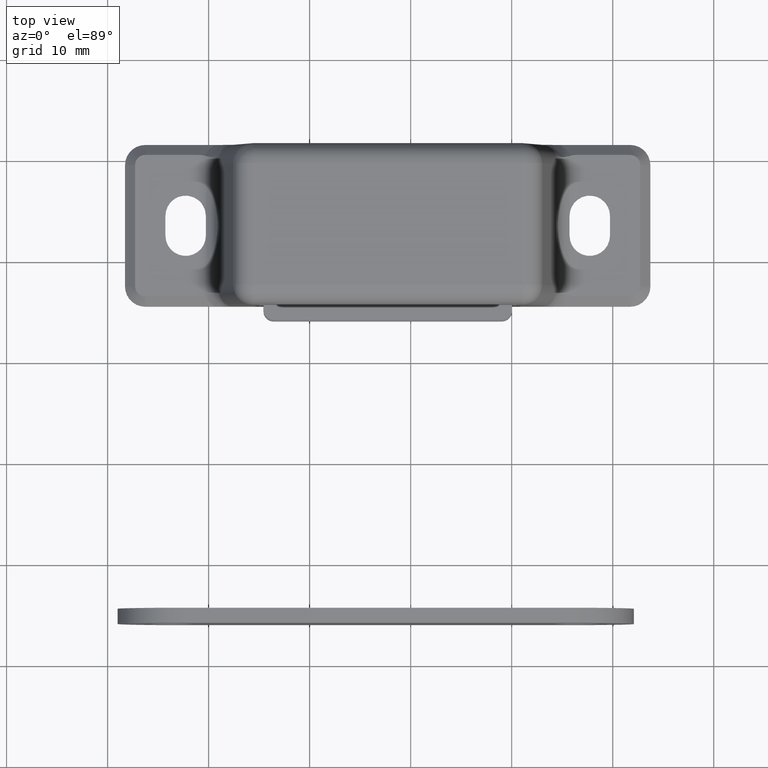
[diagram: clean part render]
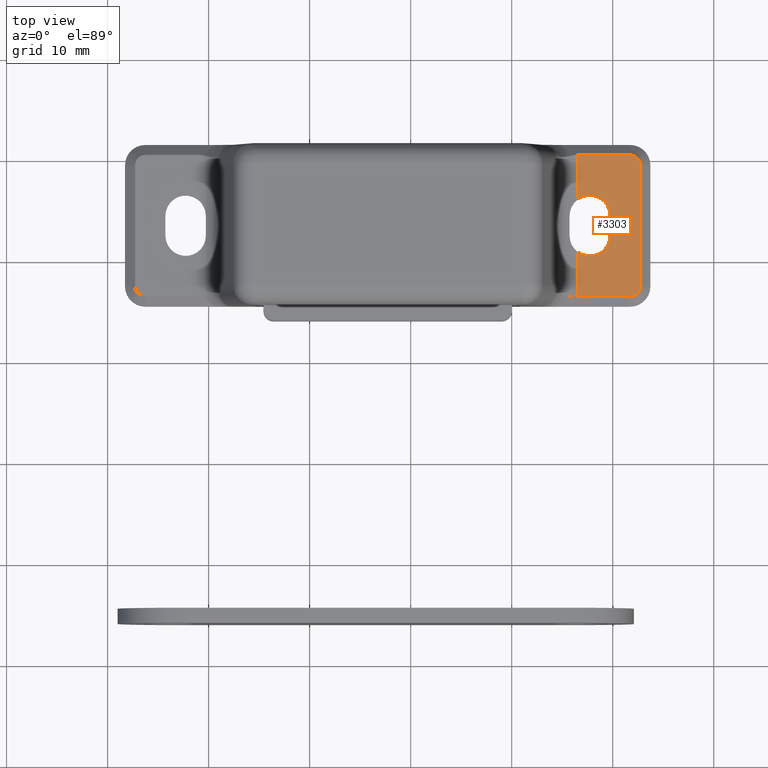
[diagram: same view with one face highlighted and labeled with its STEP entity id]
A machine part, top view. The second image highlights one B-rep face of the part: STEP entity #3303.
In plain terms, the highlighted planar face has unit normal (0, 0, 1).
Its self-contained STEP definition (entity closure, byte-faithful):
#127=ELLIPSE('',#3570,4.07486677982087,4.);
#130=ELLIPSE('',#3576,4.07486677982087,4.);
#170=PLANE('',#3577);
#320=FACE_OUTER_BOUND('',#517,.T.);
#517=EDGE_LOOP('',(#2605,#2606,#2607,#2608,#2609,#2610,#2611,#2612,#2613,
#2614,#2615,#2616));
#688=LINE('',#4745,#984);
#799=LINE('',#5762,#1095);
#800=LINE('',#5764,#1096);
#801=LINE('',#5797,#1097);
#802=LINE('',#5801,#1098);
#803=LINE('',#5804,#1099);
#984=VECTOR('',#3772,2.);
#1095=VECTOR('',#4179,3.39529863514709);
#1096=VECTOR('',#4182,3.39529863514708);
#1097=VECTOR('',#4191,5.32337475427606);
#1098=VECTOR('',#4194,12.);
#1099=VECTOR('',#4197,5.32337475427606);
#1274=CIRCLE('',#3424,2.);
#1328=CIRCLE('',#3578,2.);
#1329=CIRCLE('',#3579,1.00000000000001);
#1330=CIRCLE('',#3580,1.00000000000001);
#1398=VERTEX_POINT('',#4726);
#1399=VERTEX_POINT('',#4728);
#1402=VERTEX_POINT('',#4743);
#1538=VERTEX_POINT('',#5689);
#1539=VERTEX_POINT('',#5690);
#1542=VERTEX_POINT('',#5750);
#1544=VERTEX_POINT('',#5761);
#1545=VERTEX_POINT('',#5786);
#1546=VERTEX_POINT('',#5796);
#1547=VERTEX_POINT('',#5798);
#1548=VERTEX_POINT('',#5800);
#1549=VERTEX_POINT('',#5802);
#1709=EDGE_CURVE('',#1399,#1398,#1274,.T.);
#1714=EDGE_CURVE('',#1398,#1402,#688,.T.);
#1928=EDGE_CURVE('',#1538,#1539,#127,.T.);
#1936=EDGE_CURVE('',#1399,#1544,#799,.T.);
#1938=EDGE_CURVE('',#1539,#1542,#800,.T.);
#1940=EDGE_CURVE('',#1544,#1545,#130,.T.);
#1942=EDGE_CURVE('',#1402,#1542,#1328,.T.);
#1943=EDGE_CURVE('',#1546,#1538,#801,.T.);
#1944=EDGE_CURVE('',#1547,#1546,#1329,.T.);
#1945=EDGE_CURVE('',#1548,#1547,#802,.T.);
#1946=EDGE_CURVE('',#1549,#1548,#1330,.T.);
#1947=EDGE_CURVE('',#1545,#1549,#803,.T.);
#2605=ORIENTED_EDGE('',*,*,#1940,.F.);
#2606=ORIENTED_EDGE('',*,*,#1936,.F.);
#2607=ORIENTED_EDGE('',*,*,#1709,.T.);
#2608=ORIENTED_EDGE('',*,*,#1714,.T.);
#2609=ORIENTED_EDGE('',*,*,#1942,.T.);
#2610=ORIENTED_EDGE('',*,*,#1938,.F.);
#2611=ORIENTED_EDGE('',*,*,#1928,.F.);
#2612=ORIENTED_EDGE('',*,*,#1943,.F.);
#2613=ORIENTED_EDGE('',*,*,#1944,.F.);
#2614=ORIENTED_EDGE('',*,*,#1945,.F.);
#2615=ORIENTED_EDGE('',*,*,#1946,.F.);
#2616=ORIENTED_EDGE('',*,*,#1947,.F.);
#3303=ADVANCED_FACE('',(#320),#170,.T.);
#3424=AXIS2_PLACEMENT_3D('',#4729,#3765,#3766);
#3570=AXIS2_PLACEMENT_3D('',#5691,#4170,#4171);
#3576=AXIS2_PLACEMENT_3D('',#5787,#4185,#4186);
#3577=AXIS2_PLACEMENT_3D('',#5794,#4187,#4188);
#3578=AXIS2_PLACEMENT_3D('',#5795,#4189,#4190);
#3579=AXIS2_PLACEMENT_3D('',#5799,#4192,#4193);
#3580=AXIS2_PLACEMENT_3D('',#5803,#4195,#4196);
#3765=DIRECTION('center_axis',(-1.31834909217733E-15,0.,-1.));
#3766=DIRECTION('ref_axis',(-1.,6.93889390390724E-17,1.31834909217733E-15));
#3772=DIRECTION('',(0.,-1.,0.));
#4170=DIRECTION('center_axis',(1.31834909217733E-15,0.,1.));
#4171=DIRECTION('ref_axis',(1.,-1.36228137582692E-16,-1.31834909217733E-15));
#4179=DIRECTION('',(0.,1.,0.));
#4182=DIRECTION('',(0.,1.,0.));
#4185=DIRECTION('center_axis',(1.31834909217733E-15,0.,1.));
#4186=DIRECTION('ref_axis',(1.,1.36228137582692E-16,-1.31834909217733E-15));
#4187=DIRECTION('center_axis',(1.31834909217733E-15,0.,1.));
#4188=DIRECTION('ref_axis',(1.,0.,-1.33226762955019E-15));
#4189=DIRECTION('center_axis',(-1.31834909217733E-15,0.,-1.));
#4190=DIRECTION('ref_axis',(1.,-6.93889390390722E-17,-1.31834909217733E-15));
#4191=DIRECTION('',(-1.,0.,1.31834909217733E-15));
#4192=DIRECTION('center_axis',(-1.31834909217733E-15,0.,-1.));
#4193=DIRECTION('ref_axis',(0.707106781186548,-0.707106781186547,-9.32213583049719E-16));
#4194=DIRECTION('',(0.,-1.,0.));
#4195=DIRECTION('center_axis',(-1.31834909217733E-15,0.,-1.));
#4196=DIRECTION('ref_axis',(0.707106781186548,0.707106781186547,-9.32213583049719E-16));
#4197=DIRECTION('',(1.,0.,-1.31834909217733E-15));
#4726=CARTESIAN_POINT('',(22.,1.,1.70000000000006));
#4728=CARTESIAN_POINT('',(18.8062942030638,2.60470136485291,1.70000000000002));
#4729=CARTESIAN_POINT('Origin',(20.,1.,1.70000000000001));
#4743=CARTESIAN_POINT('',(22.,-1.,1.70000000000006));
#4745=CARTESIAN_POINT('',(22.,0.5,1.70000000000001));
#5689=CARTESIAN_POINT('',(18.6768934644344,-7.00000000000001,1.7));
#5690=CARTESIAN_POINT('',(18.8062942030638,-6.,1.70000000000001));
#5691=CARTESIAN_POINT('Origin',(14.7314274232429,-6.,1.70000000000001));
#5750=CARTESIAN_POINT('',(18.8062942030638,-2.60470136485292,1.70000000000002));
#5761=CARTESIAN_POINT('',(18.8062942030638,6.,1.70000000000001));
#5762=CARTESIAN_POINT('',(18.8062942030638,0.,1.70000000000001));
#5764=CARTESIAN_POINT('',(18.8062942030638,0.,1.70000000000001));
#5786=CARTESIAN_POINT('',(18.6768934644344,7.00000000000001,1.7));
#5787=CARTESIAN_POINT('Origin',(14.7314274232429,6.,1.70000000000001));
#5794=CARTESIAN_POINT('Origin',(17.1576214314288,0.,1.70000000000001));
#5795=CARTESIAN_POINT('Origin',(20.,-1.,1.70000000000001));
#5796=CARTESIAN_POINT('',(24.,-7.00000000000001,1.7));
#5797=CARTESIAN_POINT('',(8.57881071571439,-7.,1.70000000000002));
#5798=CARTESIAN_POINT('',(25.,-6.,1.7));
#5799=CARTESIAN_POINT('Origin',(24.,-6.,1.7));
#5800=CARTESIAN_POINT('',(25.,6.,1.7));
#5801=CARTESIAN_POINT('',(25.,0.,1.7));
#5802=CARTESIAN_POINT('',(24.,7.,1.7));
#5803=CARTESIAN_POINT('Origin',(24.,6.,1.7));
#5804=CARTESIAN_POINT('',(8.57881071571439,7.,1.70000000000002));